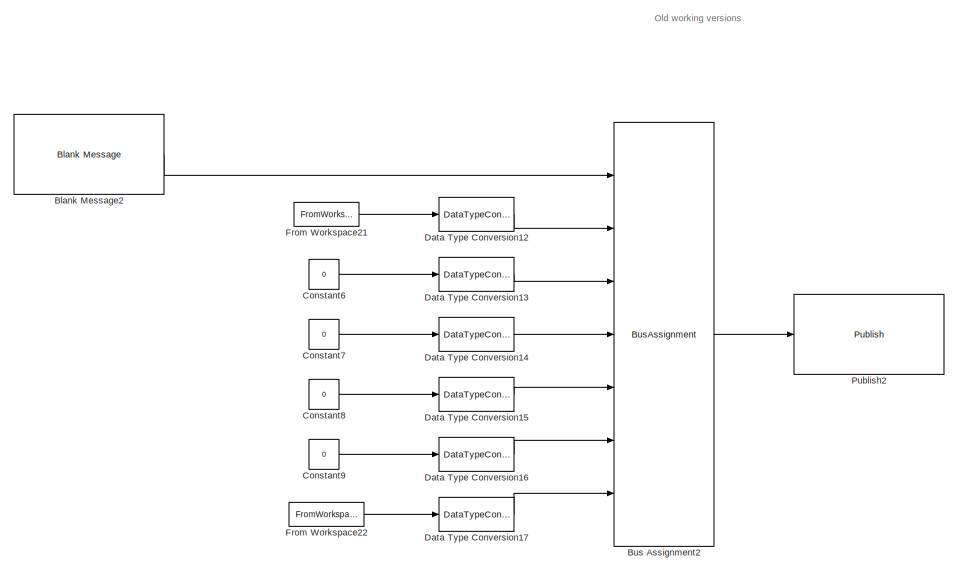
[diagram: root canvas - part 1/4, top left region]
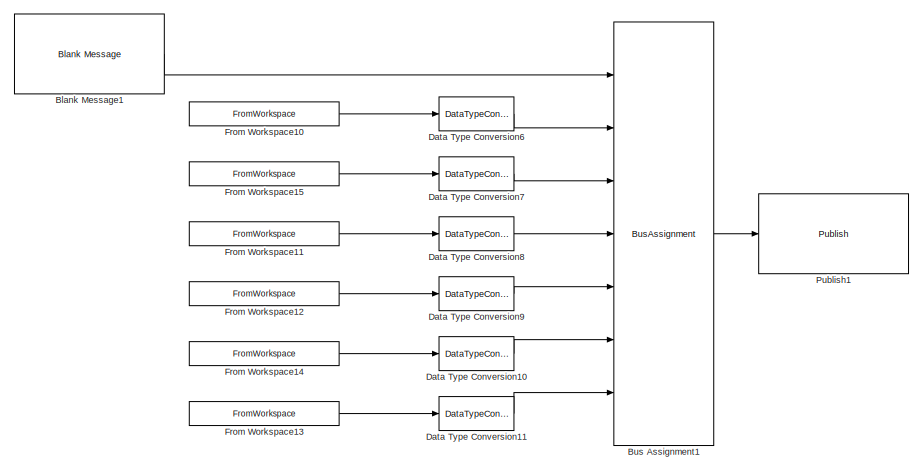
[diagram: root canvas - part 2/4, top right region]
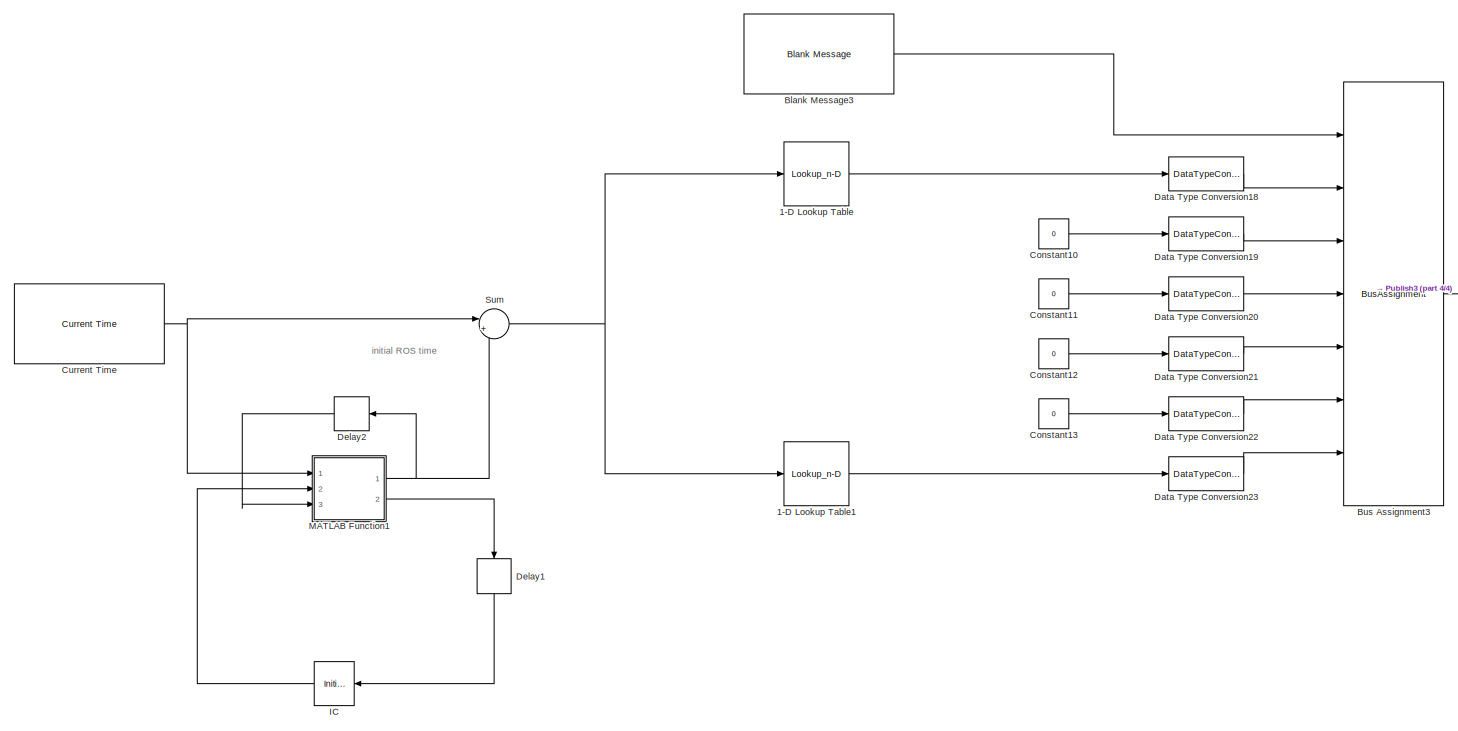
[diagram: root canvas - part 3/4, full width, bottom band]
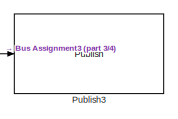
[diagram: root canvas - part 4/4, bottom right region]
MODEL slx_53ab187a0369
KIND model
CONFIG AbsTol = auto
CONFIG EnableMultiTasking = off
CONFIG FixedStep = 0.1
CONFIG MaxStep = auto
CONFIG MinStep = auto
CONFIG RelTol = 1e-3
CONFIG SampleTimeConstraint = Unconstrained
CONFIG SolverName = FixedStepAuto
CONFIG StartTime = 0
CONFIG StopTime = inf
BLOCK [Lookup_n-D] 1-D Lookup Table
  BreakpointsForDimension1 = tN
  InputPortMap = u0
  InternalRulePriority = Speed
  NumberOfTableDimensions = 1
  Ports = [1, 1]
  RndMeth = Simplest
  Table = VLN
BLOCK [Lookup_n-D] 1-D Lookup Table1
  BreakpointsForDimension1 = tN
  InputPortMap = u0
  InternalRulePriority = Speed
  NumberOfTableDimensions = 1
  Ports = [1, 1]
  RndMeth = Simplest
  Table = VAN
BLOCK [Reference] Blank Message1  REF=robotlib/Blank Message
  Commented = on
  Ports = [0, 1]
  SourceBlock = robotlib/Blank Message
  SourceProductBaseCode = RR
  SourceType = ROS Blank Message
BLOCK [Reference] Blank Message2  REF=robotlib/Blank Message
  Commented = on
  Ports = [0, 1]
  SourceBlock = robotlib/Blank Message
  SourceProductBaseCode = RR
  SourceType = ROS Blank Message
BLOCK [Reference] Blank Message3  REF=robotlib/Blank Message
  Ports = [0, 1]
  SourceBlock = robotlib/Blank Message
  SourceProductBaseCode = RR
  SourceType = ROS Blank Message
BLOCK [BusAssignment] Bus Assignment1
  AssignedSignals = Linear.X,Linear.Y,Linear.Z,Angular.X,Angular.Y,Angular.Z
  Commented = on
  Ports = [7, 1]
BLOCK [BusAssignment] Bus Assignment2
  AssignedSignals = Linear.X,Linear.Y,Linear.Z,Angular.X,Angular.Y,Angular.Z
  Commented = on
  Ports = [7, 1]
BLOCK [BusAssignment] Bus Assignment3
  AssignedSignals = Linear.X,Linear.Y,Linear.Z,Angular.X,Angular.Y,Angular.Z
  Ports = [7, 1]
BLOCK [Constant] Constant10
  Value = 0
BLOCK [Constant] Constant11
  Value = 0
BLOCK [Constant] Constant12
  Value = 0
BLOCK [Constant] Constant13
  Value = 0
BLOCK [Constant] Constant6
  Commented = on
  Value = 0
BLOCK [Constant] Constant7
  Commented = on
  Value = 0
BLOCK [Constant] Constant8
  Commented = on
  Value = 0
BLOCK [Constant] Constant9
  Commented = on
  Value = 0
BLOCK [Reference] Current Time  REF=robotlib/Current Time
  Ports = [0, 1]
  SourceBlock = robotlib/Current Time
  SourceProductBaseCode = RR
  SourceType = ros.slros.internal.block.CurrentTime
BLOCK [DataTypeConversion] Data Type Conversion10
  Commented = on
  RndMeth = Floor
  SaturateOnIntegerOverflow = off
BLOCK [DataTypeConversion] Data Type Conversion11
  Commented = on
  RndMeth = Floor
  SaturateOnIntegerOverflow = off
BLOCK [DataTypeConversion] Data Type Conversion12
  Commented = on
  RndMeth = Floor
  SaturateOnIntegerOverflow = off
BLOCK [DataTypeConversion] Data Type Conversion13
  Commented = on
  RndMeth = Floor
  SaturateOnIntegerOverflow = off
BLOCK [DataTypeConversion] Data Type Conversion14
  Commented = on
  RndMeth = Floor
  SaturateOnIntegerOverflow = off
BLOCK [DataTypeConversion] Data Type Conversion15
  Commented = on
  RndMeth = Floor
  SaturateOnIntegerOverflow = off
BLOCK [DataTypeConversion] Data Type Conversion16
  Commented = on
  RndMeth = Floor
  SaturateOnIntegerOverflow = off
BLOCK [DataTypeConversion] Data Type Conversion17
  Commented = on
  RndMeth = Floor
  SaturateOnIntegerOverflow = off
BLOCK [DataTypeConversion] Data Type Conversion18
  RndMeth = Floor
  SaturateOnIntegerOverflow = off
BLOCK [DataTypeConversion] Data Type Conversion19
  RndMeth = Floor
  SaturateOnIntegerOverflow = off
BLOCK [DataTypeConversion] Data Type Conversion20
  RndMeth = Floor
  SaturateOnIntegerOverflow = off
BLOCK [DataTypeConversion] Data Type Conversion21
  RndMeth = Floor
  SaturateOnIntegerOverflow = off
BLOCK [DataTypeConversion] Data Type Conversion22
  RndMeth = Floor
  SaturateOnIntegerOverflow = off
BLOCK [DataTypeConversion] Data Type Conversion23
  RndMeth = Floor
  SaturateOnIntegerOverflow = off
BLOCK [DataTypeConversion] Data Type Conversion6
  Commented = on
  RndMeth = Floor
  SaturateOnIntegerOverflow = off
BLOCK [DataTypeConversion] Data Type Conversion7
  Commented = on
  RndMeth = Floor
  SaturateOnIntegerOverflow = off
BLOCK [DataTypeConversion] Data Type Conversion8
  Commented = on
  RndMeth = Floor
  SaturateOnIntegerOverflow = off
BLOCK [DataTypeConversion] Data Type Conversion9
  Commented = on
  RndMeth = Floor
  SaturateOnIntegerOverflow = off
BLOCK [Delay] Delay1
  DelayLength = 1
  InputPortMap = u0
  NameLocation = left
  Ports = [1, 1]
BLOCK [Delay] Delay2
  DelayLength = 1
  InputPortMap = u0
  NameLocation = top
  Ports = [1, 1]
BLOCK [FromWorkspace] From Workspace10
  Commented = on
  VariableName = [tN VLN]
BLOCK [FromWorkspace] From Workspace11
  Commented = on
  VariableName = [tN zeros(length(tN),1)]
BLOCK [FromWorkspace] From Workspace12
  Commented = on
  VariableName = [tN zeros(length(tN),1)]
BLOCK [FromWorkspace] From Workspace13
  Commented = on
  VariableName = [tN VAN]
BLOCK [FromWorkspace] From Workspace14
  Commented = on
  VariableName = [tN zeros(length(tN),1)]
BLOCK [FromWorkspace] From Workspace15
  Commented = on
  VariableName = [tN zeros(length(tN),1)]
BLOCK [FromWorkspace] From Workspace21
  Commented = on
  VariableName = siminVLN
BLOCK [FromWorkspace] From Workspace22
  Commented = on
  VariableName = siminVAN
BLOCK [InitialCondition] IC
  NameLocation = top
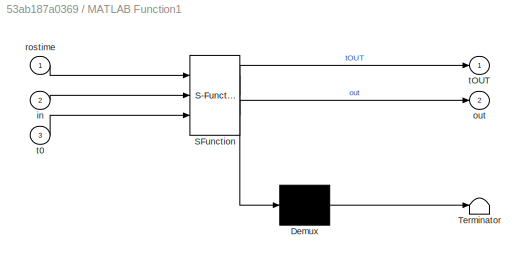
BLOCK [SubSystem] MATLAB Function1
  ErrorFcn = Stateflow.Translate.translate
  PermitHierarchicalResolution = ExplicitOnly
  Ports = [3, 2]
  RequestExecContextInheritance = off
  SFBlockType = MATLAB Function
  TreatAsAtomicUnit = on
BLOCK [Demux] MATLAB Function1/ Demux 
  Outputs = 1
  Ports = [1, 1]
BLOCK [S-Function] MATLAB Function1/ SFunction 
  EnableBusSupport = on
  FunctionName = sf_sfun
  PortCounts = [3 3]
  Ports = [3, 3]
  SFcnIsStateOwnerBlock = off
  SFunctionDeploymentMode = off
  Tag = Stateflow S-Function 1
BLOCK [Terminator] MATLAB Function1/ Terminator 
BLOCK [Inport] MATLAB Function1/in
  Port = 2
BLOCK [Outport] MATLAB Function1/out
  Port = 2
BLOCK [Inport] MATLAB Function1/rostime
BLOCK [Inport] MATLAB Function1/t0
  Port = 3
BLOCK [Outport] MATLAB Function1/tOUT
BLOCK [Reference] Publish1  REF=robotlib/Publish
  Commented = on
  Ports = [1]
  SourceBlock = robotlib/Publish
  SourceProductBaseCode = RR
  SourceType = ROS Publish
BLOCK [Reference] Publish2  REF=robotlib/Publish
  Commented = on
  Ports = [1]
  SourceBlock = robotlib/Publish
  SourceProductBaseCode = RR
  SourceType = ROS Publish
BLOCK [Reference] Publish3  REF=robotlib/Publish
  Ports = [1]
  SourceBlock = robotlib/Publish
  SourceProductBaseCode = RR
  SourceType = ROS Publish
BLOCK [Sum] Sum
  Inputs = |+-
  Ports = [2, 1]
ANNOTATION (root): Old working versions
ANNOTATION (root): initial ROS time
LINE 1-D Lookup Table1:1 -> Data Type Conversion23:1
LINE 1-D Lookup Table:1 -> Data Type Conversion18:1
LINE Blank Message1:1 -> Bus Assignment1:1
LINE Blank Message2:1 -> Bus Assignment2:1
LINE Blank Message3:1 -> Bus Assignment3:1
LINE Bus Assignment1:1 -> Publish1:1
LINE Bus Assignment2:1 -> Publish2:1
LINE Bus Assignment3:1 -> Publish3:1
LINE Constant10:1 -> Data Type Conversion19:1
LINE Constant11:1 -> Data Type Conversion20:1
LINE Constant12:1 -> Data Type Conversion21:1
LINE Constant13:1 -> Data Type Conversion22:1
LINE Constant6:1 -> Data Type Conversion13:1
LINE Constant7:1 -> Data Type Conversion14:1
LINE Constant8:1 -> Data Type Conversion15:1
LINE Constant9:1 -> Data Type Conversion16:1
NET Current Time:1 -> MATLAB Function1:1, Sum:1
LINE Data Type Conversion10:1 -> Bus Assignment1:6
LINE Data Type Conversion11:1 -> Bus Assignment1:7
LINE Data Type Conversion12:1 -> Bus Assignment2:2
LINE Data Type Conversion13:1 -> Bus Assignment2:3
LINE Data Type Conversion14:1 -> Bus Assignment2:4
LINE Data Type Conversion15:1 -> Bus Assignment2:5
LINE Data Type Conversion16:1 -> Bus Assignment2:6
LINE Data Type Conversion17:1 -> Bus Assignment2:7
LINE Data Type Conversion18:1 -> Bus Assignment3:2
LINE Data Type Conversion19:1 -> Bus Assignment3:3
LINE Data Type Conversion20:1 -> Bus Assignment3:4
LINE Data Type Conversion21:1 -> Bus Assignment3:5
LINE Data Type Conversion22:1 -> Bus Assignment3:6
LINE Data Type Conversion23:1 -> Bus Assignment3:7
LINE Data Type Conversion6:1 -> Bus Assignment1:2
LINE Data Type Conversion7:1 -> Bus Assignment1:3
LINE Data Type Conversion8:1 -> Bus Assignment1:4
LINE Data Type Conversion9:1 -> Bus Assignment1:5
LINE Delay1:1 -> IC:1
LINE Delay2:1 -> MATLAB Function1:3
LINE From Workspace10:1 -> Data Type Conversion6:1
LINE From Workspace11:1 -> Data Type Conversion8:1
LINE From Workspace12:1 -> Data Type Conversion9:1
LINE From Workspace13:1 -> Data Type Conversion11:1
LINE From Workspace14:1 -> Data Type Conversion10:1
LINE From Workspace15:1 -> Data Type Conversion7:1
LINE From Workspace21:1 -> Data Type Conversion12:1
LINE From Workspace22:1 -> Data Type Conversion17:1
LINE IC:1 -> MATLAB Function1:2
NET MATLAB Function1:1 -> Delay2:1, Sum:2
LINE MATLAB Function1:2 -> Delay1:1
NET Sum:1 -> 1-D Lookup Table1:1, 1-D Lookup Table:1
note: NET lines group one-source signal fan-out (src -> all destinations, sorted); 1:1 wires keep LINE
CHART MATLAB Function1 states=1 transitions=1
  STATE_LABEL 'eML_blk_kernel()'
  STATE_LABEL 'SCRIPT:\nfunction [tOUT, out] = fcn(rostime, in, t0)\n\n\nif in == 1\n    tOUT = rostime;\n    out = 0;\nelse\n    tOUT = t0;\n    out = 0;\nend'
CHART  states=0 transitions=0
